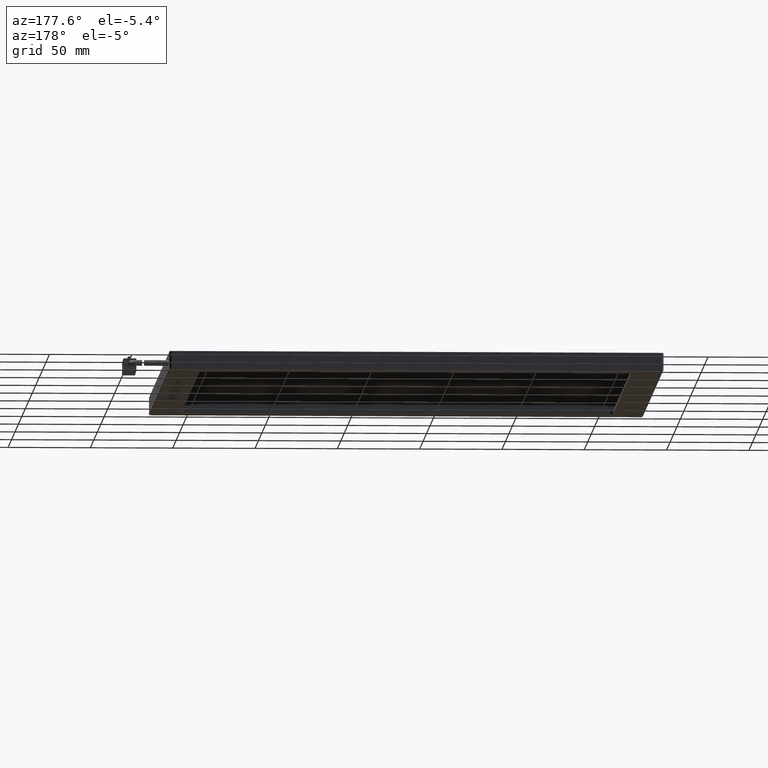
[diagram: clean part render]
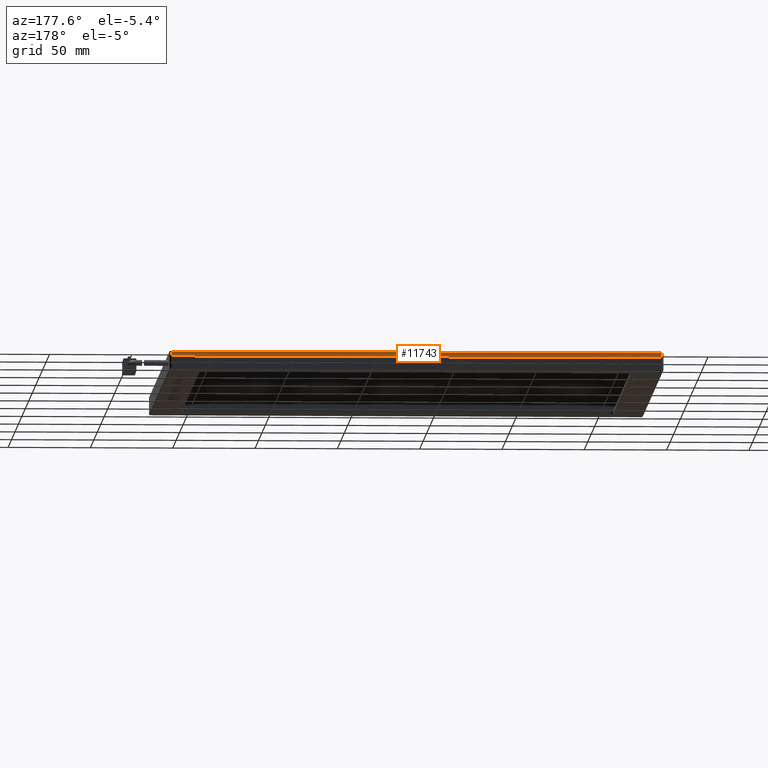
[diagram: same view with one face highlighted and labeled with its STEP entity id]
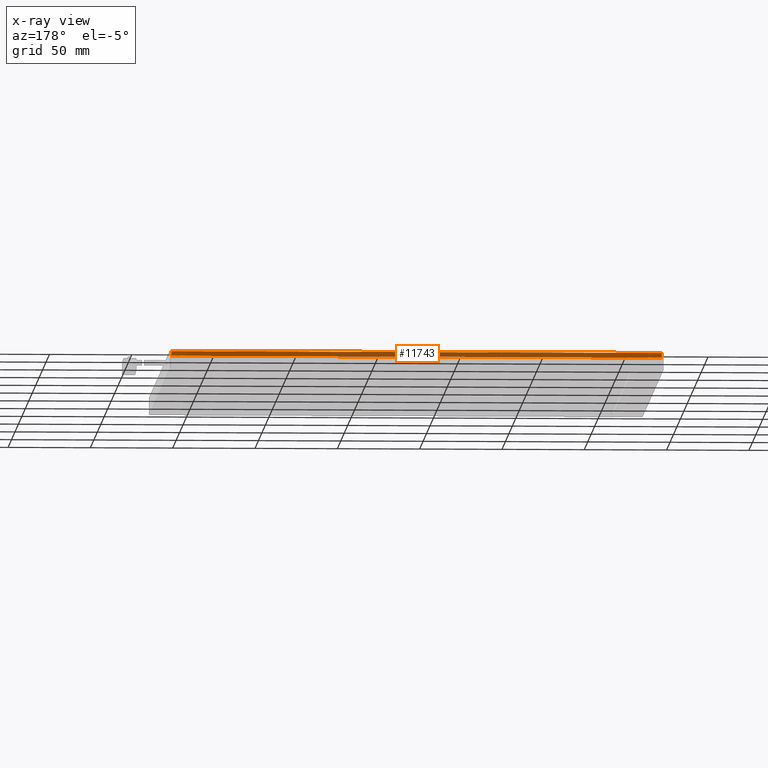
[diagram: x-ray of the same camera — body ghosted, the highlighted face saturated]
A machine part, auxiliary view. The second image highlights one B-rep face of the part: STEP entity #11743.
The next image is the same camera in x-ray: the body ghosted, the highlighted face saturated — about 0% of this face is hidden behind the body in this view.
In plain terms, the highlighted planar face has unit normal (0, -1, 0).
Its self-contained STEP definition (entity closure, byte-faithful):
#105 = DIRECTION ( 'NONE',  ( 0.0000000000000000000, -0.0000000000000000000, -1.000000000000000000 ) ) ;
#2963 = AXIS2_PLACEMENT_3D ( 'NONE', #17679, #8862, #105 ) ;
#3572 = LINE ( 'NONE', #7272, #14797 ) ;
#3719 = CARTESIAN_POINT ( 'NONE',  ( -178.7273477157359300, 189.4538071065989000, 7.799999999999953600 ) ) ;
#3795 = EDGE_CURVE ( 'NONE', #12235, #16550, #3572, .T. ) ;
#4382 = DIRECTION ( 'NONE',  ( 1.000000000000000000, -0.0000000000000000000, 0.0000000000000000000 ) ) ;
#4840 = CARTESIAN_POINT ( 'NONE',  ( -179.7273477157360400, 189.4538071065989000, 7.799999999999953600 ) ) ;
#5410 = EDGE_LOOP ( 'NONE', ( #6548, #18246, #5762, #6712 ) ) ;
#5762 = ORIENTED_EDGE ( 'NONE', *, *, #3795, .F. ) ;
#6056 = CARTESIAN_POINT ( 'NONE',  ( -178.7273477157359300, 189.4538071065989000, 7.999999999999930700 ) ) ;
#6225 = EDGE_CURVE ( 'NONE', #16550, #11974, #10263, .T. ) ;
#6267 = DIRECTION ( 'NONE',  ( -1.000000000000000000, -0.0000000000000000000, -0.0000000000000000000 ) ) ;
#6548 = ORIENTED_EDGE ( 'NONE', *, *, #14953, .F. ) ;
#6712 = ORIENTED_EDGE ( 'NONE', *, *, #17291, .F. ) ;
#7272 = CARTESIAN_POINT ( 'NONE',  ( -179.7273477157360400, 189.4538071065989000, 4.999999999999931600 ) ) ;
#7956 = VECTOR ( 'NONE', #16372, 1000.000000000000000 ) ;
#8862 = DIRECTION ( 'NONE',  ( 0.0000000000000000000, -1.000000000000000000, 0.0000000000000000000 ) ) ;
#10170 = LINE ( 'NONE', #4840, #17552 ) ;
#10263 = LINE ( 'NONE', #18803, #17634 ) ;
#10270 = PLANE ( 'NONE',  #2963 ) ;
#11338 = FACE_OUTER_BOUND ( 'NONE', #5410, .T. ) ;
#11743 = ADVANCED_FACE ( 'NONE', ( #11338 ), #10270, .F. ) ;
#11974 = VERTEX_POINT ( 'NONE', #17400 ) ;
#12235 = VERTEX_POINT ( 'NONE', #15060 ) ;
#14418 = DIRECTION ( 'NONE',  ( -0.0000000000000000000, 0.0000000000000000000, 1.000000000000000000 ) ) ;
#14797 = VECTOR ( 'NONE', #4382, 1000.000000000000000 ) ;
#14953 = EDGE_CURVE ( 'NONE', #11974, #18642, #10170, .T. ) ;
#15060 = CARTESIAN_POINT ( 'NONE',  ( -178.7273477157359300, 189.4538071065989000, 4.999999999999929800 ) ) ;
#15674 = CARTESIAN_POINT ( 'NONE',  ( 119.2726522842638400, 189.4538071065989000, 4.999999999999929800 ) ) ;
#15788 = LINE ( 'NONE', #6056, #7956 ) ;
#16372 = DIRECTION ( 'NONE',  ( 0.0000000000000000000, -0.0000000000000000000, -1.000000000000000000 ) ) ;
#16550 = VERTEX_POINT ( 'NONE', #15674 ) ;
#17291 = EDGE_CURVE ( 'NONE', #18642, #12235, #15788, .T. ) ;
#17400 = CARTESIAN_POINT ( 'NONE',  ( 119.2726522842639000, 189.4538071065988400, 7.799999999999961600 ) ) ;
#17552 = VECTOR ( 'NONE', #6267, 1000.000000000000000 ) ;
#17634 = VECTOR ( 'NONE', #14418, 1000.000000000000000 ) ;
#17679 = CARTESIAN_POINT ( 'NONE',  ( -179.7273477157360400, 189.4538071065989000, 7.999999999999930700 ) ) ;
#18246 = ORIENTED_EDGE ( 'NONE', *, *, #6225, .F. ) ;
#18642 = VERTEX_POINT ( 'NONE', #3719 ) ;
#18803 = CARTESIAN_POINT ( 'NONE',  ( 119.2726522842637800, 189.4538071065989000, 7.999999999999930700 ) ) ;